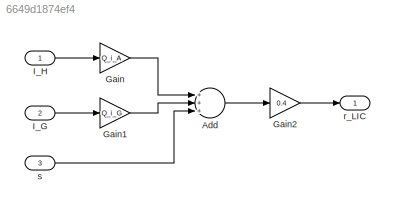
MODEL slx_6649d1874ef4
KIND model
CONFIG AbsTol = auto
CONFIG EnableMultiTasking = off
CONFIG FixedStep = auto
CONFIG MaxStep = auto
CONFIG MinStep = auto
CONFIG RelTol = 1e-3
CONFIG SampleTimeConstraint = Unconstrained
CONFIG Solver = VariableStepAuto
CONFIG SolverName = VariableStepAuto
CONFIG StartTime = 0.0
CONFIG StopTime = 10.0
BLOCK [Sum] Add
  InputSameDT = off
  Inputs = +++
  OutDataTypeStr = Inherit: Inherit via internal rule
  Ports = [3, 1]
  SaturateOnIntegerOverflow = off
BLOCK [Gain] Gain
  Gain = Q_i_A
  OutDataTypeStr = Inherit: Inherit via internal rule
  ParamDataTypeStr = Inherit: Inherit via internal rule
  SaturateOnIntegerOverflow = off
BLOCK [Gain] Gain1
  Gain = Q_i_G
  OutDataTypeStr = Inherit: Inherit via internal rule
  ParamDataTypeStr = Inherit: Inherit via internal rule
  SaturateOnIntegerOverflow = off
BLOCK [Gain] Gain2
  Gain = 0.4
  OutDataTypeStr = Inherit: Inherit via internal rule
  ParamDataTypeStr = Inherit: Inherit via internal rule
  SaturateOnIntegerOverflow = off
BLOCK [Inport] I_G
  IconDisplay = Port number
  Port = 2
BLOCK [Inport] I_H 
  IconDisplay = Port number
BLOCK [Outport] r_LIC 
  IconDisplay = Port number
BLOCK [Inport] s
  IconDisplay = Port number
  Port = 3
LINE Add:1 -> Gain2:1
LINE Gain1:1 -> Add:2
LINE Gain2:1 -> r_LIC :1
LINE Gain:1 -> Add:1
LINE I_G:1 -> Gain1:1
LINE I_H :1 -> Gain:1
LINE s:1 -> Add:3
